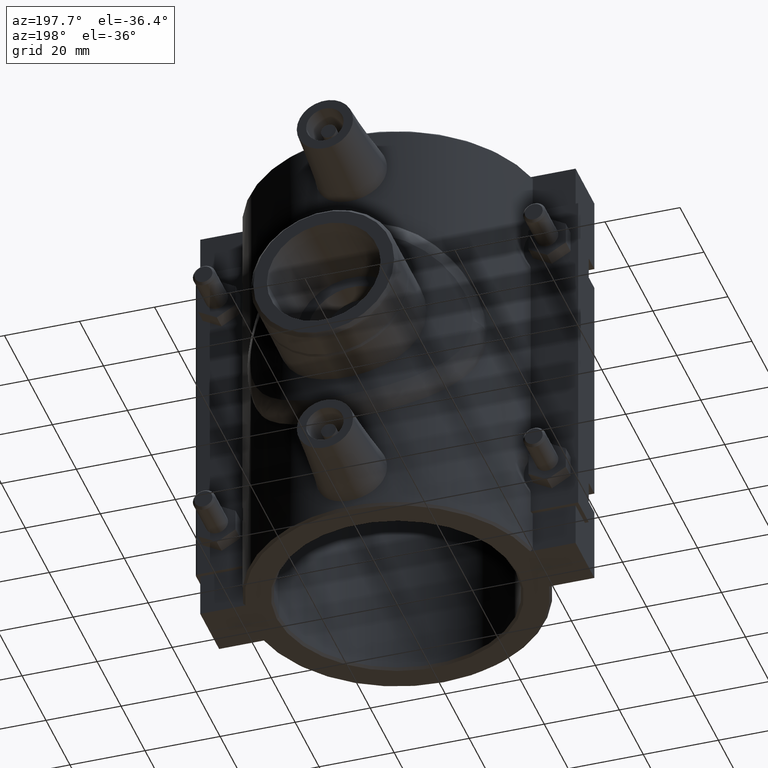
[diagram: clean part render]
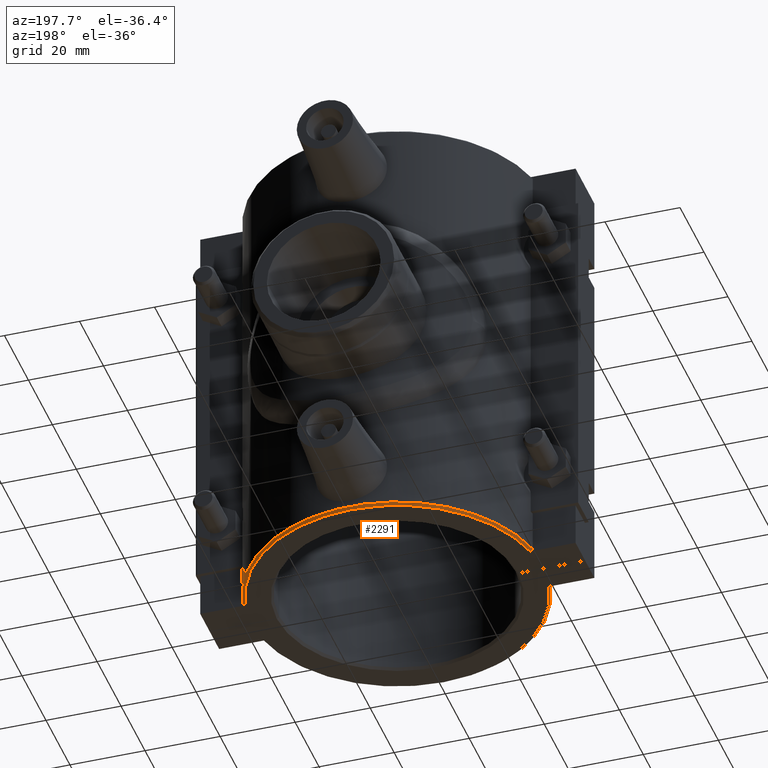
[diagram: same view with one face highlighted and labeled with its STEP entity id]
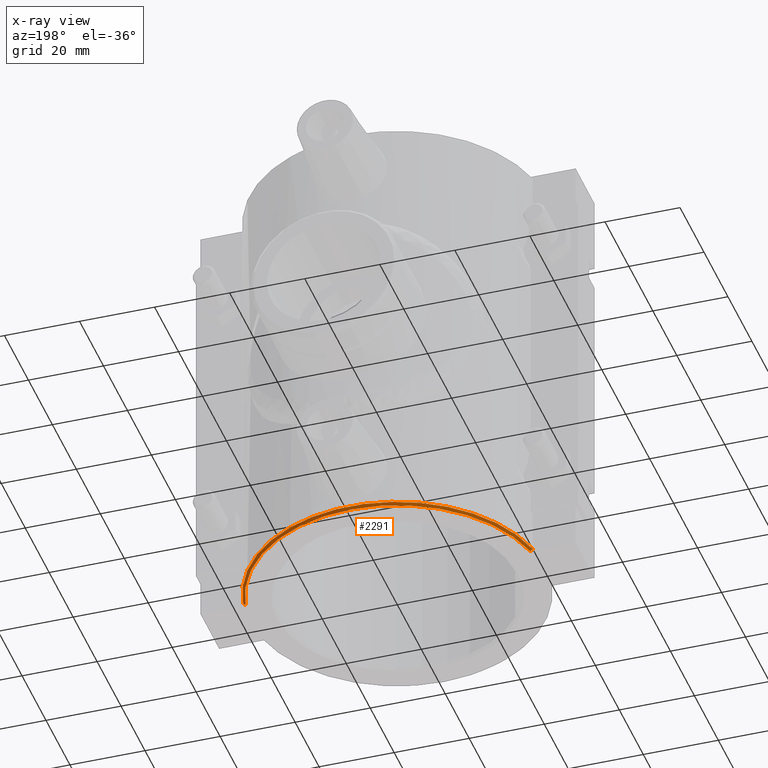
[diagram: x-ray of the same camera — body ghosted, the highlighted face saturated]
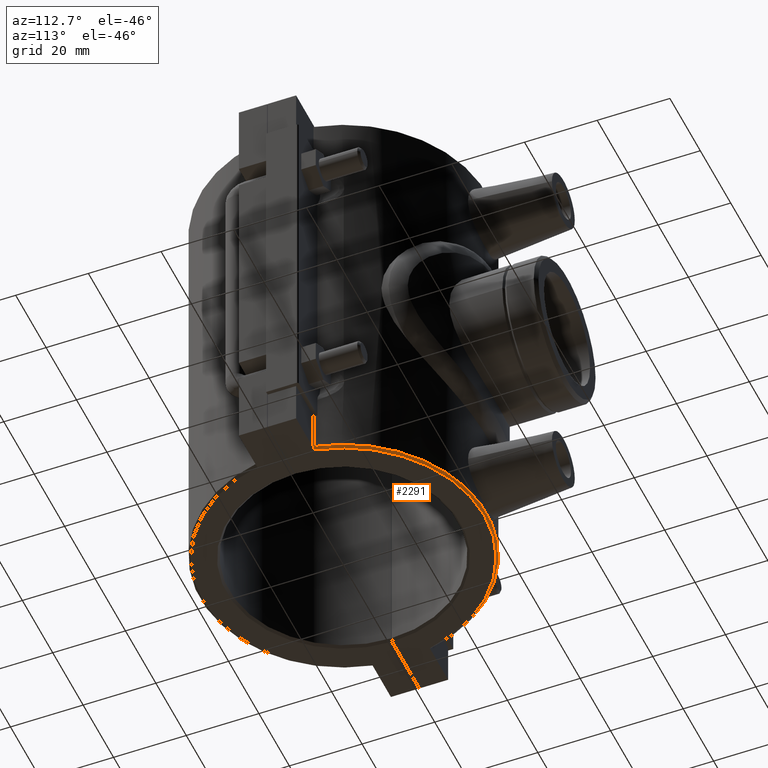
[diagram: same view with one face highlighted and labeled with its STEP entity id]
A machine part, auxiliary view. The second image highlights one B-rep face of the part: STEP entity #2291.
The next image is the same camera in x-ray: the body ghosted, the highlighted face saturated — about 0% of this face is hidden behind the body in this view.
A second angle (auxiliary view) of the same face is appended — the face is thin or edge-on in the first view.
In plain terms, the highlighted conical surface has half-angle 45 deg.
Its self-contained STEP definition (entity closure, byte-faithful):
#28=CONICAL_SURFACE('',#2478,39.06,45.0000000000002);
#49=(
BOUNDED_CURVE()
B_SPLINE_CURVE(2,(#4196,#4197,#4198),.UNSPECIFIED.,.F.,.F.)
B_SPLINE_CURVE_WITH_KNOTS((3,3),(0.,0.090034318503411),.UNSPECIFIED.)
CURVE()
GEOMETRIC_REPRESENTATION_ITEM()
RATIONAL_B_SPLINE_CURVE((1.,1.00003389760153,1.))
REPRESENTATION_ITEM('')
);
#50=(
BOUNDED_CURVE()
B_SPLINE_CURVE(2,(#4200,#4201,#4202),.UNSPECIFIED.,.F.,.F.)
B_SPLINE_CURVE_WITH_KNOTS((3,3),(0.,0.0900343185034107),.UNSPECIFIED.)
CURVE()
GEOMETRIC_REPRESENTATION_ITEM()
RATIONAL_B_SPLINE_CURVE((1.,1.00003389763031,1.))
REPRESENTATION_ITEM('')
);
#260=FACE_OUTER_BOUND('',#431,.T.);
#431=EDGE_LOOP('',(#1937,#1938,#1939,#1940));
#898=CIRCLE('',#2411,39.375);
#927=CIRCLE('',#2479,38.745);
#1063=VERTEX_POINT('',#3765);
#1064=VERTEX_POINT('',#3767);
#1130=VERTEX_POINT('',#4195);
#1131=VERTEX_POINT('',#4199);
#1318=EDGE_CURVE('',#1064,#1063,#898,.T.);
#1418=EDGE_CURVE('',#1130,#1064,#49,.F.);
#1419=EDGE_CURVE('',#1063,#1131,#50,.F.);
#1420=EDGE_CURVE('',#1131,#1130,#927,.T.);
#1937=ORIENTED_EDGE('',*,*,#1418,.T.);
#1938=ORIENTED_EDGE('',*,*,#1318,.T.);
#1939=ORIENTED_EDGE('',*,*,#1419,.T.);
#1940=ORIENTED_EDGE('',*,*,#1420,.T.);
#2291=ADVANCED_FACE('',(#260),#28,.T.);
#2411=AXIS2_PLACEMENT_3D('',#3768,#2801,#2802);
#2478=AXIS2_PLACEMENT_3D('',#4194,#2988,#2989);
#2479=AXIS2_PLACEMENT_3D('',#4203,#2990,#2991);
#2801=DIRECTION('center_axis',(0.,0.,-1.));
#2802=DIRECTION('ref_axis',(1.,0.,0.));
#2988=DIRECTION('center_axis',(0.,0.,1.));
#2989=DIRECTION('ref_axis',(1.,0.,0.));
#2990=DIRECTION('center_axis',(0.,0.,1.));
#2991=DIRECTION('ref_axis',(1.,0.,0.));
#3765=CARTESIAN_POINT('',(38.5794634488351,7.87499999999999,-58.37));
#3767=CARTESIAN_POINT('',(-38.5794634488351,7.875,-58.37));
#3768=CARTESIAN_POINT('Origin',(0.,0.,-58.37));
#4194=CARTESIAN_POINT('Origin',(0.,0.,-58.685));
#4195=CARTESIAN_POINT('',(-37.936254427658,7.87499999999999,-59.));
#4196=CARTESIAN_POINT('Ctrl Pts',(-38.5794634488351,7.875,-58.37));
#4197=CARTESIAN_POINT('Ctrl Pts',(-38.2552653535105,7.875,-58.6876479636509));
#4198=CARTESIAN_POINT('Ctrl Pts',(-37.936254427658,7.875,-59.));
#4199=CARTESIAN_POINT('',(37.936254427658,7.87499999999998,-59.));
#4200=CARTESIAN_POINT('Ctrl Pts',(37.936254427658,7.87499999999999,-59.));
#4201=CARTESIAN_POINT('Ctrl Pts',(38.2552653535041,7.87499999999999,-58.6876479636572));
#4202=CARTESIAN_POINT('Ctrl Pts',(38.5794634488351,7.87499999999999,-58.37));
#4203=CARTESIAN_POINT('Origin',(0.,0.,-59.));